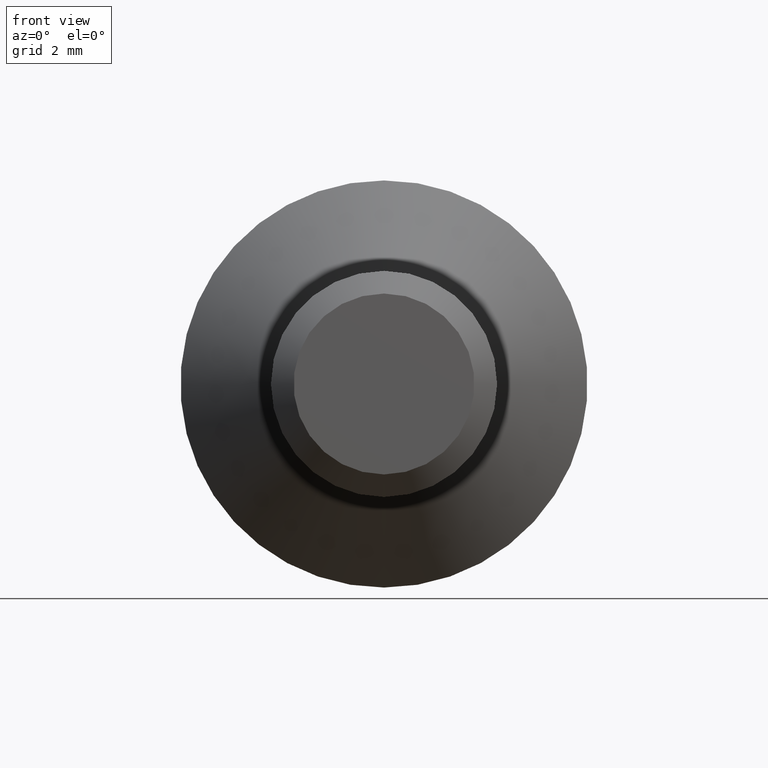
[diagram: clean part render]
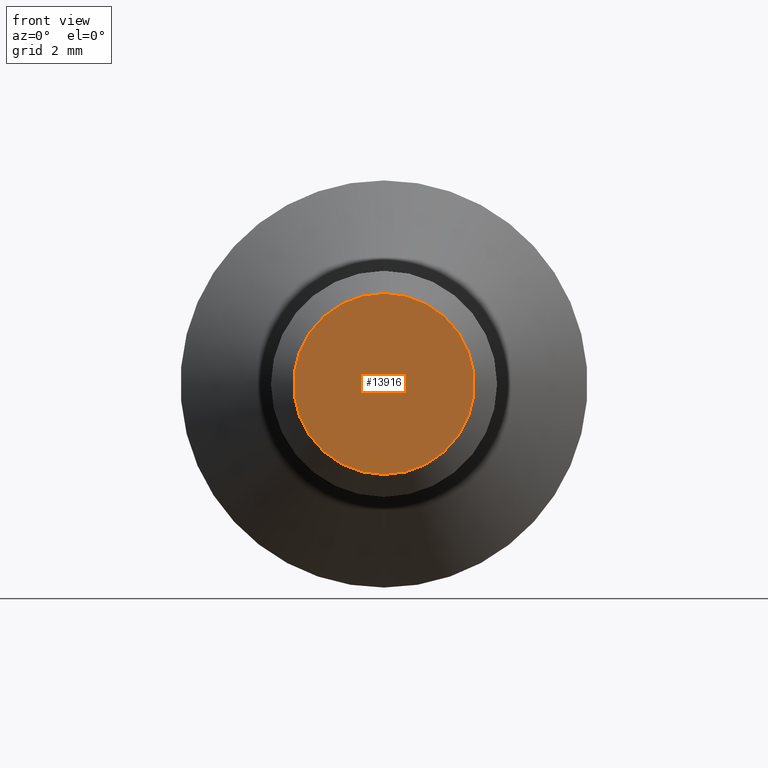
[diagram: same view with one face highlighted and labeled with its STEP entity id]
A machine part, front view. The second image highlights one B-rep face of the part: STEP entity #13916.
In plain terms, the highlighted planar face has unit normal (0, -1, -0).
Its self-contained STEP definition (entity closure, byte-faithful):
#818 = DIRECTION ( 'NONE',  ( 0.0000000000000000000, 0.0000000000000000000, -1.000000000000000000 ) ) ;
#2063 = PLANE ( 'NONE',  #6449 ) ;
#2796 = EDGE_CURVE ( 'NONE', #8649, #8649, #9447, .T. ) ;
#4263 = CARTESIAN_POINT ( 'NONE',  ( 0.0000000000000000000, 3.061616997868388600E-017, -2.000000000000003600 ) ) ;
#4268 = FACE_OUTER_BOUND ( 'NONE', #9549, .T. ) ;
#4804 = AXIS2_PLACEMENT_3D ( 'NONE', #7744, #6600, #5285 ) ;
#5285 = DIRECTION ( 'NONE',  ( 0.0000000000000000000, 0.0000000000000000000, -1.000000000000000000 ) ) ;
#6449 = AXIS2_PLACEMENT_3D ( 'NONE', #9798, #14459, #818 ) ;
#6600 = DIRECTION ( 'NONE',  ( -0.0000000000000000000, -1.000000000000000000, -0.0000000000000000000 ) ) ;
#7744 = CARTESIAN_POINT ( 'NONE',  ( 0.0000000000000000000, 3.061616997868388600E-017, 0.0000000000000000000 ) ) ;
#8649 = VERTEX_POINT ( 'NONE', #4263 ) ;
#9447 = CIRCLE ( 'NONE', #4804, 2.000000000000003600 ) ;
#9549 = EDGE_LOOP ( 'NONE', ( #12468 ) ) ;
#9798 = CARTESIAN_POINT ( 'NONE',  ( 2.500000000000001800, 3.061616997868388600E-017, 0.0000000000000000000 ) ) ;
#12468 = ORIENTED_EDGE ( 'NONE', *, *, #2796, .T. ) ;
#13916 = ADVANCED_FACE ( 'NONE', ( #4268 ), #2063, .T. ) ;
#14459 = DIRECTION ( 'NONE',  ( 0.0000000000000000000, -1.000000000000000000, -0.0000000000000000000 ) ) ;